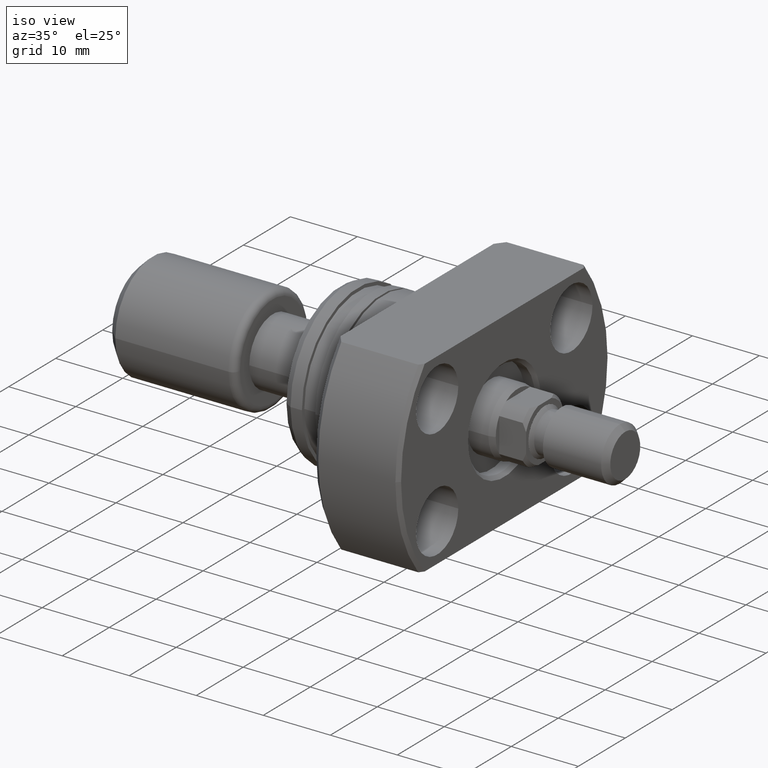
[diagram: clean part render]
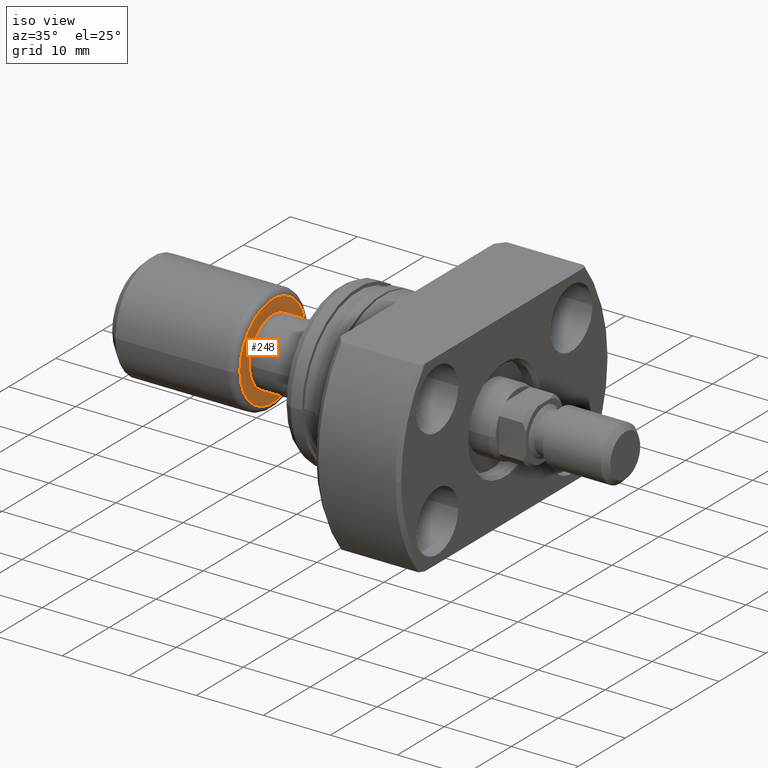
[diagram: same view with one face highlighted and labeled with its STEP entity id]
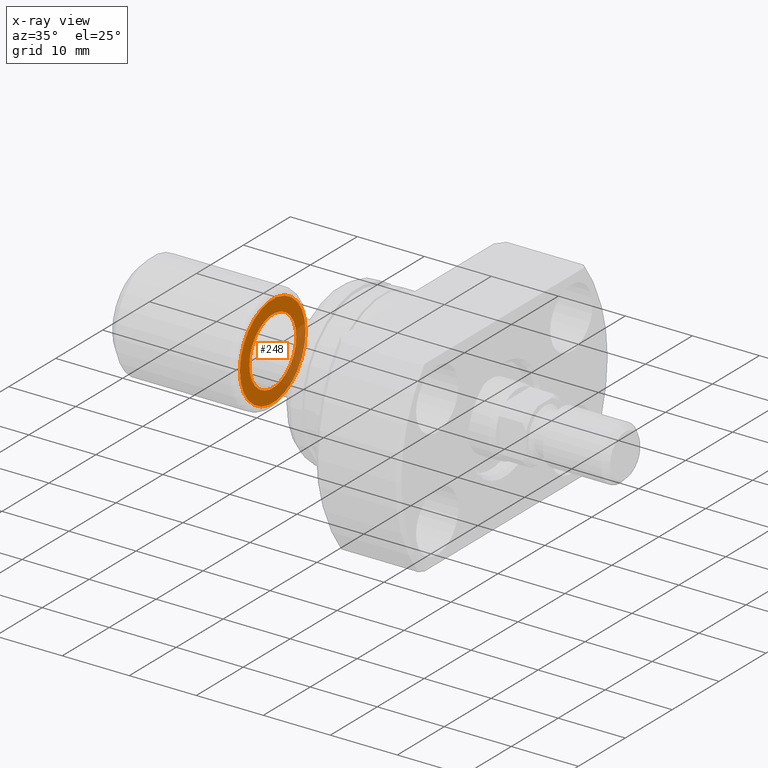
[diagram: x-ray of the same camera — body ghosted, the highlighted face saturated]
A machine part, iso view. The second image highlights one B-rep face of the part: STEP entity #248.
The next image is the same camera in x-ray: the body ghosted, the highlighted face saturated — about 22% of this face is hidden behind the body in this view.
In plain terms, the highlighted planar face has unit normal (-1, -0, 0).
Its self-contained STEP definition (entity closure, byte-faithful):
#123 = VERTEX_POINT ( 'NONE', #3192 ) ;
#149 = CARTESIAN_POINT ( 'NONE',  ( 19.40000000000006253, 2.074912104813994331E-16, 0.000000000000000000 ) ) ;
#248 = ADVANCED_FACE ( 'NONE', ( #1357, #1307 ), #3586, .F. ) ;
#334 = DIRECTION ( 'NONE',  ( 0.000000000000000000, -1.000000000000000000, 0.000000000000000000 ) ) ;
#404 = CARTESIAN_POINT ( 'NONE',  ( 19.40000000000006253, 2.074912104813994331E-16, 0.000000000000000000 ) ) ;
#470 = DIRECTION ( 'NONE',  ( 0.000000000000000000, -1.000000000000000000, 0.000000000000000000 ) ) ;
#599 = ORIENTED_EDGE ( 'NONE', *, *, #662, .F. ) ;
#662 = EDGE_CURVE ( 'NONE', #1139, #1883, #1852, .T. ) ;
#670 = EDGE_LOOP ( 'NONE', ( #599, #3304 ) ) ;
#777 = DIRECTION ( 'NONE',  ( -1.000000000000000000, -1.069542322069065801E-17, -0.000000000000000000 ) ) ;
#855 = AXIS2_PLACEMENT_3D ( 'NONE', #404, #1419, #334 ) ;
#1025 = VERTEX_POINT ( 'NONE', #2640 ) ;
#1136 = EDGE_CURVE ( 'NONE', #1883, #1139, #2563, .T. ) ;
#1139 = VERTEX_POINT ( 'NONE', #2139 ) ;
#1199 = DIRECTION ( 'NONE',  ( -1.000000000000000000, -1.069542322069065801E-17, -0.000000000000000000 ) ) ;
#1273 = AXIS2_PLACEMENT_3D ( 'NONE', #1479, #1199, #2247 ) ;
#1307 = FACE_BOUND ( 'NONE', #2179, .T. ) ;
#1357 = FACE_OUTER_BOUND ( 'NONE', #670, .T. ) ;
#1419 = DIRECTION ( 'NONE',  ( -1.000000000000000000, -1.069542322069065801E-17, -0.000000000000000000 ) ) ;
#1439 = CARTESIAN_POINT ( 'NONE',  ( 19.40000000000006253, 6.999999999999996447, 9.184850993605144000E-16 ) ) ;
#1479 = CARTESIAN_POINT ( 'NONE',  ( 19.40000000000006253, 2.074912104813994331E-16, 0.000000000000000000 ) ) ;
#1510 = AXIS2_PLACEMENT_3D ( 'NONE', #149, #1551, #3541 ) ;
#1551 = DIRECTION ( 'NONE',  ( -1.000000000000000000, -1.069542322069065801E-17, -0.000000000000000000 ) ) ;
#1564 = CARTESIAN_POINT ( 'NONE',  ( 19.40000000000006253, -4.999999999999976019, 0.000000000000000000 ) ) ;
#1595 = CARTESIAN_POINT ( 'NONE',  ( 19.40000000000006253, 2.074912104813994331E-16, 0.000000000000000000 ) ) ;
#1852 = CIRCLE ( 'NONE', #2926, 6.999999999999996447 ) ;
#1857 = ORIENTED_EDGE ( 'NONE', *, *, #1954, .T. ) ;
#1883 = VERTEX_POINT ( 'NONE', #1439 ) ;
#1954 = EDGE_CURVE ( 'NONE', #1025, #123, #2928, .T. ) ;
#2139 = CARTESIAN_POINT ( 'NONE',  ( 19.40000000000006253, -6.999999999999996447, 0.000000000000000000 ) ) ;
#2179 = EDGE_LOOP ( 'NONE', ( #2888, #1857 ) ) ;
#2245 = EDGE_CURVE ( 'NONE', #123, #1025, #2627, .T. ) ;
#2247 = DIRECTION ( 'NONE',  ( 0.000000000000000000, -1.000000000000000000, 0.000000000000000000 ) ) ;
#2427 = DIRECTION ( 'NONE',  ( -1.000000000000000000, -1.069542322069065801E-17, 0.000000000000000000 ) ) ;
#2563 = CIRCLE ( 'NONE', #1510, 6.999999999999996447 ) ;
#2627 = CIRCLE ( 'NONE', #1273, 4.999999999999976019 ) ;
#2640 = CARTESIAN_POINT ( 'NONE',  ( 19.40000000000006253, 4.999999999999976019, 6.123233995736851085E-16 ) ) ;
#2888 = ORIENTED_EDGE ( 'NONE', *, *, #2245, .T. ) ;
#2920 = AXIS2_PLACEMENT_3D ( 'NONE', #1564, #2427, #3036 ) ;
#2926 = AXIS2_PLACEMENT_3D ( 'NONE', #1595, #777, #470 ) ;
#2928 = CIRCLE ( 'NONE', #855, 4.999999999999976019 ) ;
#3036 = DIRECTION ( 'NONE',  ( 1.069542322069065801E-17, -1.000000000000000000, 0.000000000000000000 ) ) ;
#3192 = CARTESIAN_POINT ( 'NONE',  ( 19.40000000000006253, -4.999999999999976019, 0.000000000000000000 ) ) ;
#3304 = ORIENTED_EDGE ( 'NONE', *, *, #1136, .F. ) ;
#3541 = DIRECTION ( 'NONE',  ( 0.000000000000000000, -1.000000000000000000, 0.000000000000000000 ) ) ;
#3586 = PLANE ( 'NONE',  #2920 ) ;